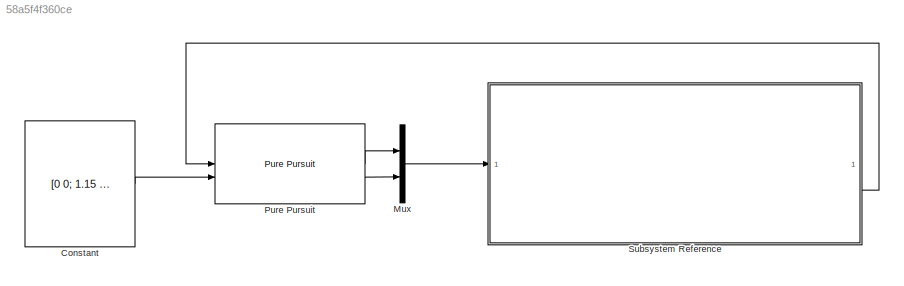
MODEL slx_58a5f4f360ce
KIND model
CONFIG AbsTol = auto
CONFIG EnableMultiTasking = on
CONFIG FixedStep = auto
CONFIG MaxStep = auto
CONFIG MinStep = auto
CONFIG RelTol = 1e-3
CONFIG SampleTimeConstraint = Unconstrained
CONFIG SolverName = FixedStepAuto
CONFIG StartTime = 0.0
CONFIG StopTime = 30
WORKSPACE source: mxarray member
WORKSPACE d = 0.15
BLOCK [Constant] Constant
  Value = [0 0; 1.15 0; 1.15 -0.15; 0.35 0.8; 0.35 1.6; 1.9 1.6; 1.9 0; 2.607 -0.707]
BLOCK [Mux] Mux
  DisplayOption = bar
  Inputs = 2
BLOCK [Reference] Pure Pursuit  REF=robotalgslib/Pure Pursuit
  LibrarySourceBlock = robotmobilelib/Pure Pursuit
  SourceBlock = robotalgslib/Pure Pursuit
  SourceType = nav.slalgs.internal.PurePursuit
BLOCK [SubSystem] Subsystem Reference
  ReferencedSubsystem = PieroCalculos
LINE Constant:1 -> Pure Pursuit:2
LINE Mux:1 -> Subsystem Reference:1
LINE Pure Pursuit:1 -> Mux:1
LINE Pure Pursuit:2 -> Mux:2
LINE Subsystem Reference:2 -> Pure Pursuit:1
